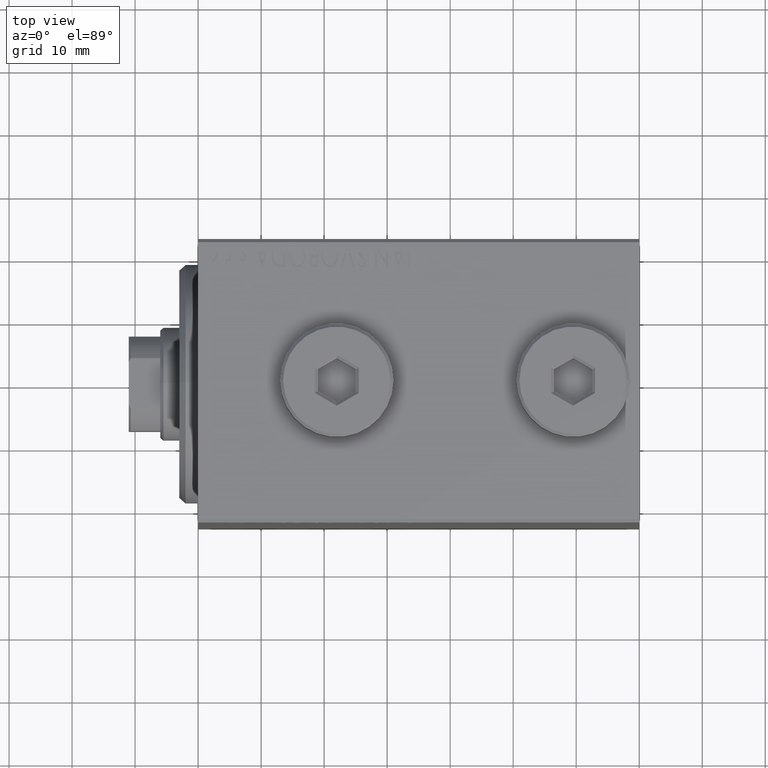
[diagram: clean part render]
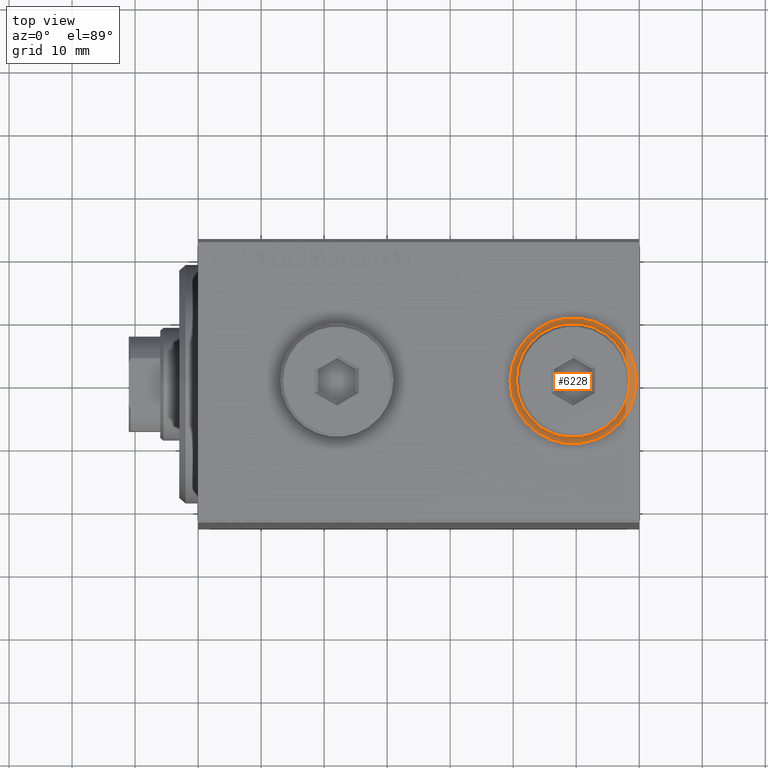
[diagram: same view with one face highlighted and labeled with its STEP entity id]
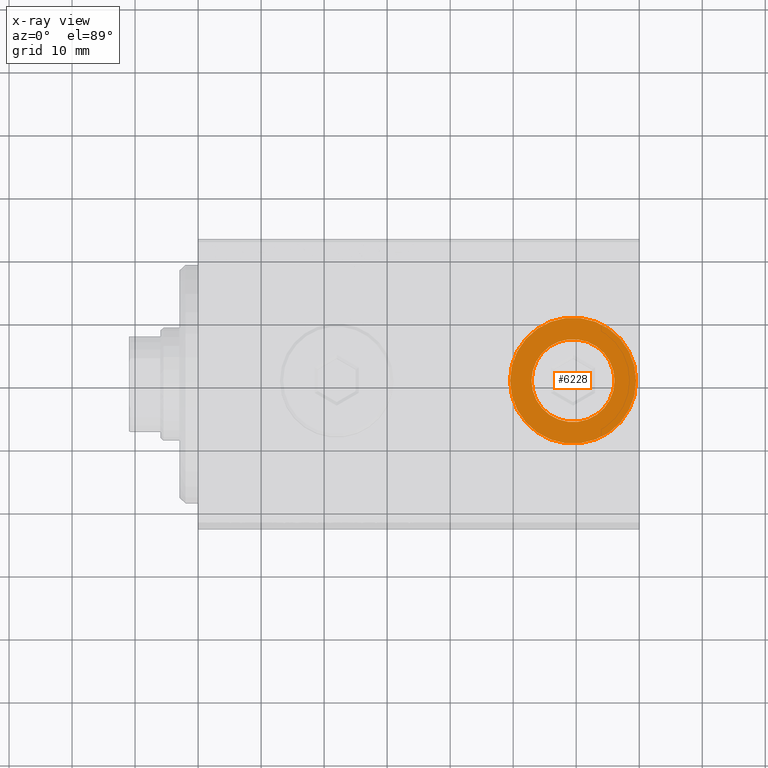
[diagram: x-ray of the same camera — body ghosted, the highlighted face saturated]
A machine part, top view. The second image highlights one B-rep face of the part: STEP entity #6228.
The next image is the same camera in x-ray: the body ghosted, the highlighted face saturated — about 0% of this face is hidden behind the body in this view.
In plain terms, the highlighted planar face has unit normal (0, 0, 1).
Its self-contained STEP definition (entity closure, byte-faithful):
#232 = CARTESIAN_POINT ( 'NONE',  ( 59.50000000000000711, -5.011423375044109033E-15, 32.39999999999998437 ) ) ;
#274 = AXIS2_PLACEMENT_3D ( 'NONE', #15934, #15492, #29558 ) ;
#2496 = ORIENTED_EDGE ( 'NONE', *, *, #15247, .T. ) ;
#2732 = AXIS2_PLACEMENT_3D ( 'NONE', #30749, #33977, #40060 ) ;
#6228 = ADVANCED_FACE ( 'NONE', ( #31909, #42502 ), #29117, .T. ) ;
#6429 = CIRCLE ( 'NONE', #8641, 6.579999999999995630 ) ;
#6821 = CARTESIAN_POINT ( 'NONE',  ( 69.50000000000000000, -5.011423375044109033E-15, 32.39999999999998437 ) ) ;
#7135 = CARTESIAN_POINT ( 'NONE',  ( 66.07999999999999829, -5.011423375044109033E-15, 32.39999999999998437 ) ) ;
#7323 = VERTEX_POINT ( 'NONE', #38005 ) ;
#7652 = CIRCLE ( 'NONE', #274, 6.579999999999995630 ) ;
#8391 = CIRCLE ( 'NONE', #39333, 10.00000000000000178 ) ;
#8641 = AXIS2_PLACEMENT_3D ( 'NONE', #30341, #40928, #13725 ) ;
#10415 = EDGE_CURVE ( 'NONE', #16779, #7323, #7652, .T. ) ;
#11198 = VERTEX_POINT ( 'NONE', #6821 ) ;
#13725 = DIRECTION ( 'NONE',  ( 1.000000000000000000, 0.000000000000000000, 0.000000000000000000 ) ) ;
#14074 = DIRECTION ( 'NONE',  ( 0.000000000000000000, 0.000000000000000000, 1.000000000000000000 ) ) ;
#15163 = CARTESIAN_POINT ( 'NONE',  ( 49.50000000000000000, -3.786776575896756763E-15, 32.39999999999998437 ) ) ;
#15247 = EDGE_CURVE ( 'NONE', #11198, #30113, #8391, .T. ) ;
#15492 = DIRECTION ( 'NONE',  ( 0.000000000000000000, 0.000000000000000000, 1.000000000000000000 ) ) ;
#15934 = CARTESIAN_POINT ( 'NONE',  ( 59.50000000000000711, -5.011423375044109033E-15, 32.39999999999998437 ) ) ;
#16094 = EDGE_LOOP ( 'NONE', ( #38003, #19615 ) ) ;
#16779 = VERTEX_POINT ( 'NONE', #7135 ) ;
#17513 = ORIENTED_EDGE ( 'NONE', *, *, #29248, .T. ) ;
#19615 = ORIENTED_EDGE ( 'NONE', *, *, #25117, .F. ) ;
#19841 = EDGE_LOOP ( 'NONE', ( #2496, #17513 ) ) ;
#20274 = DIRECTION ( 'NONE',  ( 1.000000000000000000, 0.000000000000000000, 0.000000000000000000 ) ) ;
#21971 = CARTESIAN_POINT ( 'NONE',  ( 59.50000000000000711, -5.011423375044109033E-15, 32.39999999999998437 ) ) ;
#22194 = DIRECTION ( 'NONE',  ( 0.000000000000000000, 0.000000000000000000, 1.000000000000000000 ) ) ;
#24452 = AXIS2_PLACEMENT_3D ( 'NONE', #21971, #22194, #42734 ) ;
#25117 = EDGE_CURVE ( 'NONE', #7323, #16779, #6429, .T. ) ;
#29117 = PLANE ( 'NONE',  #24452 ) ;
#29248 = EDGE_CURVE ( 'NONE', #30113, #11198, #42518, .T. ) ;
#29558 = DIRECTION ( 'NONE',  ( 1.000000000000000000, 0.000000000000000000, 0.000000000000000000 ) ) ;
#30113 = VERTEX_POINT ( 'NONE', #15163 ) ;
#30341 = CARTESIAN_POINT ( 'NONE',  ( 59.50000000000000711, -5.011423375044109033E-15, 32.39999999999998437 ) ) ;
#30749 = CARTESIAN_POINT ( 'NONE',  ( 59.50000000000000711, -5.011423375044109033E-15, 32.39999999999998437 ) ) ;
#31909 = FACE_BOUND ( 'NONE', #16094, .T. ) ;
#33977 = DIRECTION ( 'NONE',  ( 0.000000000000000000, 0.000000000000000000, 1.000000000000000000 ) ) ;
#38003 = ORIENTED_EDGE ( 'NONE', *, *, #10415, .F. ) ;
#38005 = CARTESIAN_POINT ( 'NONE',  ( 52.92000000000000881, -4.205605781205151569E-15, 32.39999999999998437 ) ) ;
#39333 = AXIS2_PLACEMENT_3D ( 'NONE', #232, #14074, #20274 ) ;
#40060 = DIRECTION ( 'NONE',  ( 1.000000000000000000, 0.000000000000000000, 0.000000000000000000 ) ) ;
#40928 = DIRECTION ( 'NONE',  ( 0.000000000000000000, 0.000000000000000000, 1.000000000000000000 ) ) ;
#42502 = FACE_OUTER_BOUND ( 'NONE', #19841, .T. ) ;
#42518 = CIRCLE ( 'NONE', #2732, 10.00000000000000178 ) ;
#42734 = DIRECTION ( 'NONE',  ( 1.000000000000000000, 0.000000000000000000, -0.000000000000000000 ) ) ;